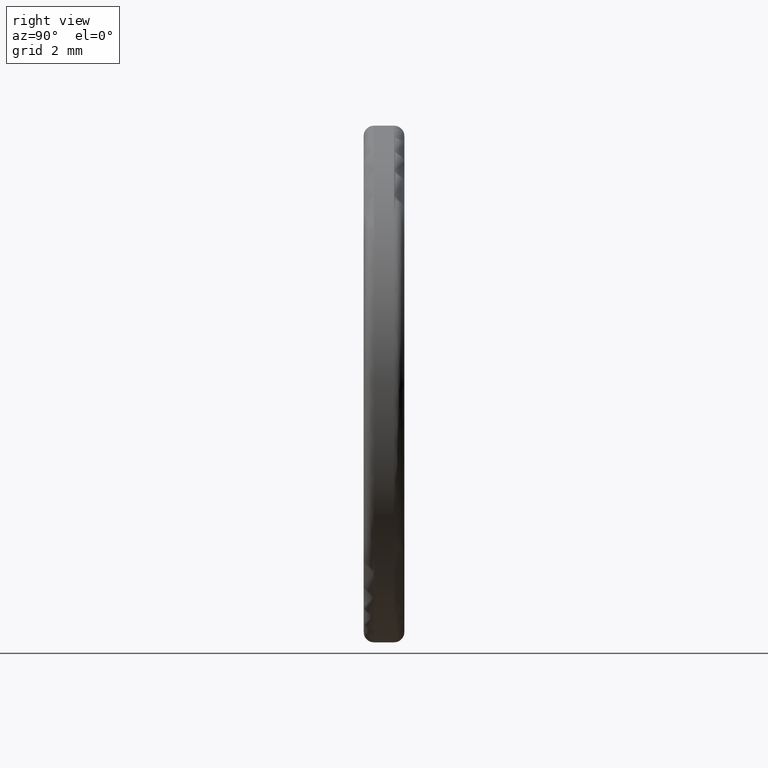
[diagram: clean part render]
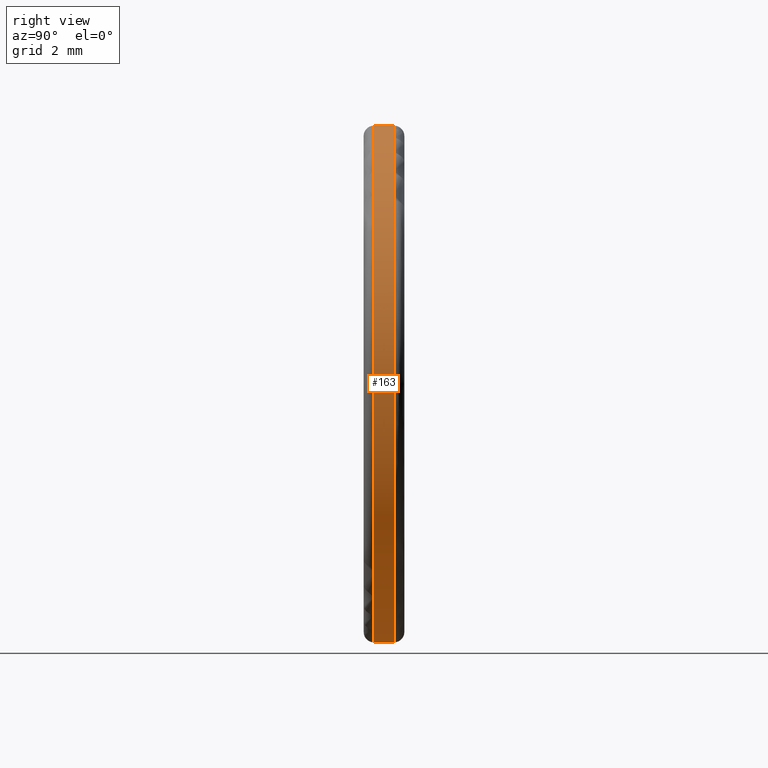
[diagram: same view with one face highlighted and labeled with its STEP entity id]
A machine part, right view. The second image highlights one B-rep face of the part: STEP entity #163.
In plain terms, the highlighted cylindrical surface (partial cylindrical patch) has radius 6.35 mm, axis along (-0, 1, -0).
Its self-contained STEP definition (entity closure, byte-faithful):
#14 = CARTESIAN_POINT ( 'NONE',  ( 0.0000000000000000000, 4.847222222222231203, 0.0000000000000000000 ) ) ;
#20 = CARTESIAN_POINT ( 'NONE',  ( 0.0000000000000000000, 0.2499999999999993616, 0.0000000000000000000 ) ) ;
#43 = AXIS2_PLACEMENT_3D ( 'NONE', #14, #400, #302 ) ;
#44 = ORIENTED_EDGE ( 'NONE', *, *, #404, .T. ) ;
#73 = CIRCLE ( 'NONE', #169, 6.349999999999994316 ) ;
#86 = DIRECTION ( 'NONE',  ( 0.0000000000000000000, 0.0000000000000000000, 1.000000000000000000 ) ) ;
#95 = DIRECTION ( 'NONE',  ( -0.0000000000000000000, 1.000000000000000000, -0.0000000000000000000 ) ) ;
#104 = EDGE_CURVE ( 'NONE', #135, #144, #276, .T. ) ;
#131 = CARTESIAN_POINT ( 'NONE',  ( 0.0000000000000000000, 0.2499999999999993616, 6.349999999999994316 ) ) ;
#135 = VERTEX_POINT ( 'NONE', #320 ) ;
#144 = VERTEX_POINT ( 'NONE', #131 ) ;
#147 = CIRCLE ( 'NONE', #271, 6.349999999999994316 ) ;
#163 = ADVANCED_FACE ( 'NONE', ( #174 ), #336, .T. ) ;
#169 = AXIS2_PLACEMENT_3D ( 'NONE', #232, #297, #86 ) ;
#174 = FACE_OUTER_BOUND ( 'NONE', #316, .T. ) ;
#175 = EDGE_CURVE ( 'NONE', #135, #345, #73, .T. ) ;
#182 = CARTESIAN_POINT ( 'NONE',  ( 0.0000000000000000000, 4.847222222222231203, 6.349999999999994316 ) ) ;
#201 = ORIENTED_EDGE ( 'NONE', *, *, #175, .T. ) ;
#207 = LINE ( 'NONE', #333, #324 ) ;
#224 = DIRECTION ( 'NONE',  ( -0.0000000000000000000, 1.000000000000000000, -0.0000000000000000000 ) ) ;
#232 = CARTESIAN_POINT ( 'NONE',  ( 0.0000000000000000000, -0.2500000000000011102, 0.0000000000000000000 ) ) ;
#270 = DIRECTION ( 'NONE',  ( 0.0000000000000000000, -1.000000000000000000, 0.0000000000000000000 ) ) ;
#271 = AXIS2_PLACEMENT_3D ( 'NONE', #20, #270, #441 ) ;
#276 = LINE ( 'NONE', #182, #385 ) ;
#297 = DIRECTION ( 'NONE',  ( -0.0000000000000000000, 1.000000000000000000, -0.0000000000000000000 ) ) ;
#300 = ORIENTED_EDGE ( 'NONE', *, *, #312, .T. ) ;
#302 = DIRECTION ( 'NONE',  ( 0.0000000000000000000, 0.0000000000000000000, 1.000000000000000000 ) ) ;
#309 = CARTESIAN_POINT ( 'NONE',  ( 7.776507174585686247E-16, -0.2500000000000011102, -6.349999999999994316 ) ) ;
#312 = EDGE_CURVE ( 'NONE', #455, #144, #147, .T. ) ;
#313 = CARTESIAN_POINT ( 'NONE',  ( 7.776507174585686247E-16, 0.2499999999999993616, -6.349999999999994316 ) ) ;
#316 = EDGE_LOOP ( 'NONE', ( #201, #44, #300, #356 ) ) ;
#320 = CARTESIAN_POINT ( 'NONE',  ( 0.0000000000000000000, -0.2500000000000011102, 6.349999999999994316 ) ) ;
#324 = VECTOR ( 'NONE', #95, 1000.000000000000000 ) ;
#333 = CARTESIAN_POINT ( 'NONE',  ( 7.776507174585686247E-16, 4.847222222222231203, -6.349999999999994316 ) ) ;
#336 = CYLINDRICAL_SURFACE ( 'NONE', #43, 6.349999999999994316 ) ;
#345 = VERTEX_POINT ( 'NONE', #309 ) ;
#356 = ORIENTED_EDGE ( 'NONE', *, *, #104, .F. ) ;
#385 = VECTOR ( 'NONE', #224, 1000.000000000000000 ) ;
#400 = DIRECTION ( 'NONE',  ( -0.0000000000000000000, 1.000000000000000000, -0.0000000000000000000 ) ) ;
#404 = EDGE_CURVE ( 'NONE', #345, #455, #207, .T. ) ;
#441 = DIRECTION ( 'NONE',  ( 0.0000000000000000000, 0.0000000000000000000, -1.000000000000000000 ) ) ;
#455 = VERTEX_POINT ( 'NONE', #313 ) ;